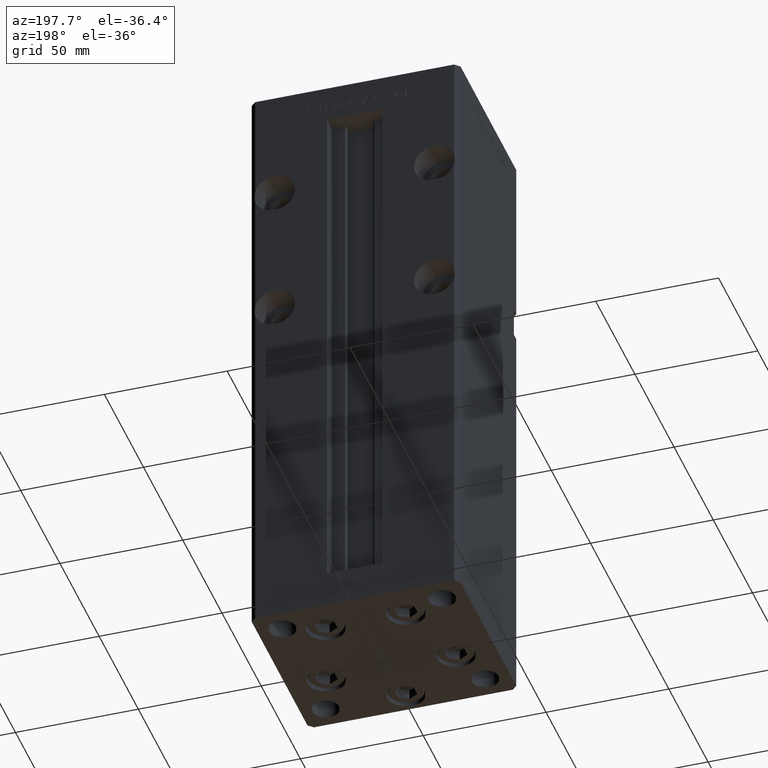
[diagram: clean part render]
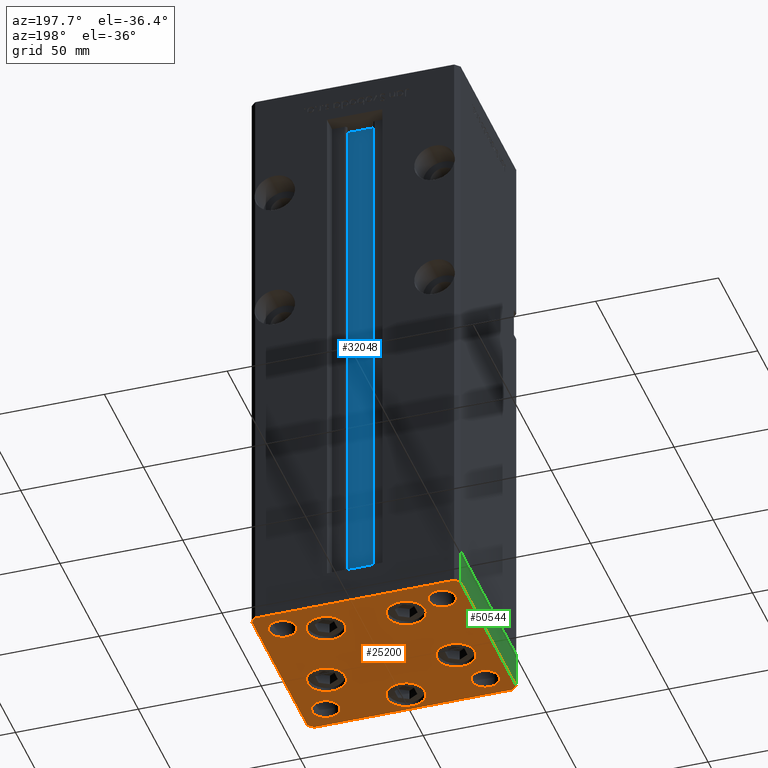
[diagram: same view with three faces highlighted in distinct colors, each labeled with its STEP entity id]
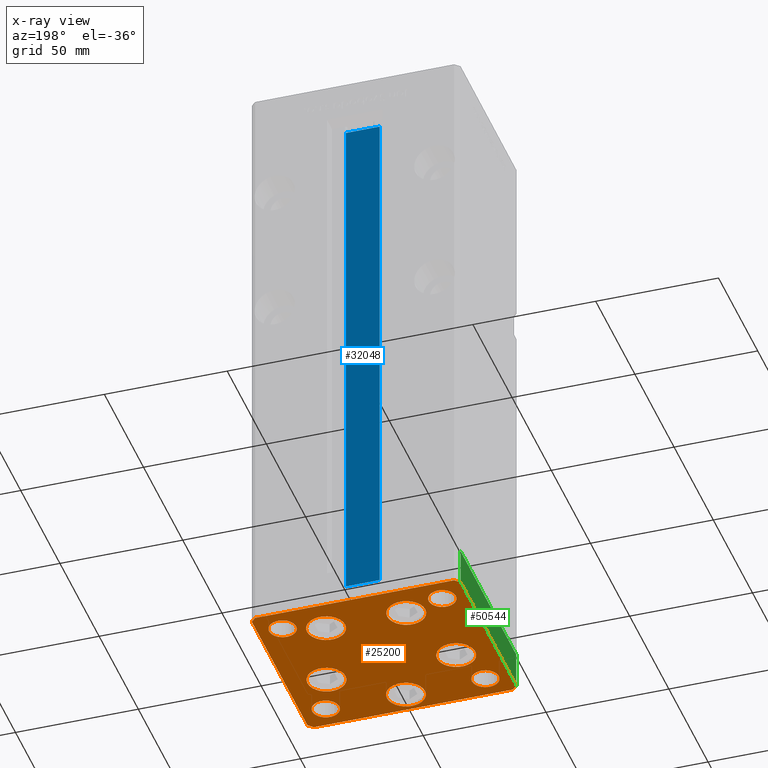
[diagram: x-ray of the same camera — body ghosted, the three highlighted faces saturated]
A machine part, auxiliary view with three faces highlighted in distinct colors.
The next image is the same camera in x-ray (body ghosted, the three faces saturated) — at least one of them is partly hidden behind the body in this view.
Their STEP definitions:

[orange] entity #25200 — the highlighted planar face has unit normal (0, 0, -1).
#27 = DIRECTION ( 'NONE',  ( 0.000000000000000000, -0.000000000000000000, -1.000000000000000000 ) ) ;
#595 = VERTEX_POINT ( 'NONE', #44178 ) ;
#1424 = VERTEX_POINT ( 'NONE', #3083 ) ;
#1489 = ORIENTED_EDGE ( 'NONE', *, *, #15292, .T. ) ;
#1565 = EDGE_LOOP ( 'NONE', ( #50676, #9344 ) ) ;
#1581 = DIRECTION ( 'NONE',  ( 0.7071067811865463515, -0.7071067811865487940, 0.000000000000000000 ) ) ;
#1622 = CARTESIAN_POINT ( 'NONE',  ( -32.50000000000000000, -27.49999999999999645, 0.000000000000000000 ) ) ;
#1764 = CARTESIAN_POINT ( 'NONE',  ( 8.572913342905422951, 22.75000000000000000, 0.000000000000000000 ) ) ;
#1968 = VECTOR ( 'NONE', #29401, 1000.000000000000114 ) ;
#2198 = DIRECTION ( 'NONE',  ( 1.000000000000000000, 0.000000000000000000, 0.000000000000000000 ) ) ;
#2305 = EDGE_CURVE ( 'NONE', #51693, #46533, #50969, .T. ) ;
#2357 = CARTESIAN_POINT ( 'NONE',  ( 42.50000000000000711, -35.50000000000000000, 0.000000000000000000 ) ) ;
#2459 = DIRECTION ( 'NONE',  ( 0.000000000000000000, -0.000000000000000000, -1.000000000000000000 ) ) ;
#2765 = FACE_BOUND ( 'NONE', #1565, .T. ) ;
#3083 = CARTESIAN_POINT ( 'NONE',  ( 24.07291334290542650, 22.75000000000000000, 0.000000000000000000 ) ) ;
#3184 = DIRECTION ( 'NONE',  ( 0.000000000000000000, -0.000000000000000000, -1.000000000000000000 ) ) ;
#3546 = ORIENTED_EDGE ( 'NONE', *, *, #7113, .F. ) ;
#3689 = EDGE_CURVE ( 'NONE', #10119, #29524, #33499, .T. ) ;
#3828 = VERTEX_POINT ( 'NONE', #3985 ) ;
#3985 = CARTESIAN_POINT ( 'NONE',  ( -38.00000000000000000, 27.50000000000000355, 0.000000000000000000 ) ) ;
#4078 = AXIS2_PLACEMENT_3D ( 'NONE', #51885, #2459, #2198 ) ;
#4608 = AXIS2_PLACEMENT_3D ( 'NONE', #52625, #11804, #44318 ) ;
#5154 = AXIS2_PLACEMENT_3D ( 'NONE', #6729, #19589, #43796 ) ;
#5332 = VECTOR ( 'NONE', #52474, 1000.000000000000000 ) ;
#5371 = CARTESIAN_POINT ( 'NONE',  ( 27.00000000000000355, -27.49999999999999645, 0.000000000000000000 ) ) ;
#6441 = VERTEX_POINT ( 'NONE', #5371 ) ;
#6544 = DIRECTION ( 'NONE',  ( 1.000000000000000000, 0.000000000000000000, 0.000000000000000000 ) ) ;
#6729 = CARTESIAN_POINT ( 'NONE',  ( -26.39865316429776954, -9.333333333333337478, 0.000000000000000000 ) ) ;
#6808 = DIRECTION ( 'NONE',  ( -0.000000000000000000, 0.000000000000000000, 1.000000000000000000 ) ) ;
#7010 = ORIENTED_EDGE ( 'NONE', *, *, #18995, .T. ) ;
#7113 = EDGE_CURVE ( 'NONE', #31175, #3828, #36892, .T. ) ;
#7271 = ORIENTED_EDGE ( 'NONE', *, *, #49273, .F. ) ;
#8013 = EDGE_LOOP ( 'NONE', ( #35431, #51350 ) ) ;
#8648 = DIRECTION ( 'NONE',  ( 0.000000000000000000, -0.000000000000000000, -1.000000000000000000 ) ) ;
#8663 = ORIENTED_EDGE ( 'NONE', *, *, #17700, .T. ) ;
#9298 = EDGE_CURVE ( 'NONE', #35750, #26385, #14732, .T. ) ;
#9344 = ORIENTED_EDGE ( 'NONE', *, *, #13995, .T. ) ;
#9469 = EDGE_CURVE ( 'NONE', #49606, #30882, #23628, .T. ) ;
#9786 = LINE ( 'NONE', #38244, #34239 ) ;
#9826 = CARTESIAN_POINT ( 'NONE',  ( 16.32291334290542295, 22.75000000000000000, 0.000000000000000000 ) ) ;
#10119 = VERTEX_POINT ( 'NONE', #45939 ) ;
#10178 = CARTESIAN_POINT ( 'NONE',  ( -42.50000000000000000, -35.50000000000000711, 0.000000000000000000 ) ) ;
#10279 = CIRCLE ( 'NONE', #11129, 7.750000000000003553 ) ;
#10666 = CIRCLE ( 'NONE', #32945, 5.499999999999998224 ) ;
#11038 = CARTESIAN_POINT ( 'NONE',  ( -40.49999999999999289, -37.50000000000002132, 0.000000000000000000 ) ) ;
#11089 = FACE_BOUND ( 'NONE', #25773, .T. ) ;
#11129 = AXIS2_PLACEMENT_3D ( 'NONE', #12813, #25436, #46367 ) ;
#11357 = FACE_BOUND ( 'NONE', #21410, .T. ) ;
#11388 = CARTESIAN_POINT ( 'NONE',  ( 40.49999999999991473, 37.50000000000000711, 0.000000000000000000 ) ) ;
#11657 = EDGE_LOOP ( 'NONE', ( #3546, #49091 ) ) ;
#11667 = DIRECTION ( 'NONE',  ( 9.773090005503140331E-17, -1.000000000000000000, 0.000000000000000000 ) ) ;
#11771 = DIRECTION ( 'NONE',  ( 1.000000000000000000, 0.000000000000000000, 0.000000000000000000 ) ) ;
#11804 = DIRECTION ( 'NONE',  ( -0.000000000000000000, 0.000000000000000000, 1.000000000000000000 ) ) ;
#11880 = LINE ( 'NONE', #52175, #22270 ) ;
#11987 = VERTEX_POINT ( 'NONE', #19865 ) ;
#12306 = DIRECTION ( 'NONE',  ( 0.000000000000000000, -0.000000000000000000, -1.000000000000000000 ) ) ;
#12640 = AXIS2_PLACEMENT_3D ( 'NONE', #49090, #12306, #11771 ) ;
#12813 = CARTESIAN_POINT ( 'NONE',  ( 16.32291334290542295, 22.75000000000000000, 0.000000000000000000 ) ) ;
#13249 = AXIS2_PLACEMENT_3D ( 'NONE', #43069, #6808, #6544 ) ;
#13722 = DIRECTION ( 'NONE',  ( 1.000000000000000000, 0.000000000000000000, 0.000000000000000000 ) ) ;
#13725 = AXIS2_PLACEMENT_3D ( 'NONE', #27244, #15145, #43630 ) ;
#13940 = CARTESIAN_POINT ( 'NONE',  ( 26.39865316429776954, -9.333333333333330373, 0.000000000000000000 ) ) ;
#13995 = EDGE_CURVE ( 'NONE', #30882, #49606, #47793, .T. ) ;
#14473 = EDGE_CURVE ( 'NONE', #43197, #28442, #40119, .T. ) ;
#14674 = DIRECTION ( 'NONE',  ( 1.000000000000000000, 0.000000000000000000, 0.000000000000000000 ) ) ;
#14732 = LINE ( 'NONE', #10178, #21938 ) ;
#15145 = DIRECTION ( 'NONE',  ( -0.000000000000000000, 0.000000000000000000, 1.000000000000000000 ) ) ;
#15292 = EDGE_CURVE ( 'NONE', #29524, #10119, #26382, .T. ) ;
#15377 = DIRECTION ( 'NONE',  ( 0.7071067811865474617, 0.7071067811865474617, 0.000000000000000000 ) ) ;
#15586 = CARTESIAN_POINT ( 'NONE',  ( 38.00000000000000000, -27.49999999999999645, 0.000000000000000000 ) ) ;
#15643 = DIRECTION ( 'NONE',  ( -0.000000000000000000, 0.000000000000000000, 1.000000000000000000 ) ) ;
#15676 = LINE ( 'NONE', #11388, #5332 ) ;
#15916 = DIRECTION ( 'NONE',  ( 0.000000000000000000, -0.000000000000000000, -1.000000000000000000 ) ) ;
#15918 = VERTEX_POINT ( 'NONE', #24896 ) ;
#15949 = LINE ( 'NONE', #19440, #47536 ) ;
#16305 = VECTOR ( 'NONE', #51506, 1000.000000000000000 ) ;
#16477 = DIRECTION ( 'NONE',  ( 1.000000000000000000, 1.713307136767217096E-16, 0.000000000000000000 ) ) ;
#16685 = EDGE_CURVE ( 'NONE', #28442, #43197, #37552, .T. ) ;
#16691 = DIRECTION ( 'NONE',  ( 1.000000000000000000, 0.000000000000000000, 0.000000000000000000 ) ) ;
#16781 = LINE ( 'NONE', #36658, #1968 ) ;
#17188 = DIRECTION ( 'NONE',  ( 0.000000000000000000, -0.000000000000000000, -1.000000000000000000 ) ) ;
#17700 = EDGE_CURVE ( 'NONE', #19817, #22047, #28149, .T. ) ;
#17824 = AXIS2_PLACEMENT_3D ( 'NONE', #1622, #34663, #42992 ) ;
#18131 = DIRECTION ( 'NONE',  ( 1.000000000000000000, 0.000000000000000000, 0.000000000000000000 ) ) ;
#18497 = DIRECTION ( 'NONE',  ( 1.000000000000000000, 0.000000000000000000, 0.000000000000000000 ) ) ;
#18694 = DIRECTION ( 'NONE',  ( 0.000000000000000000, -0.000000000000000000, -1.000000000000000000 ) ) ;
#18703 = EDGE_LOOP ( 'NONE', ( #1489, #42323 ) ) ;
#18995 = EDGE_CURVE ( 'NONE', #32114, #1424, #28177, .T. ) ;
#19231 = CARTESIAN_POINT ( 'NONE',  ( 32.50000000000000000, -27.49999999999999645, 0.000000000000000000 ) ) ;
#19313 = CARTESIAN_POINT ( 'NONE',  ( -8.572913342905431833, 22.74999999999999645, 0.000000000000000000 ) ) ;
#19440 = CARTESIAN_POINT ( 'NONE',  ( -40.49999999999999289, -37.50000000000002132, 0.000000000000000000 ) ) ;
#19589 = DIRECTION ( 'NONE',  ( 0.000000000000000000, -0.000000000000000000, -1.000000000000000000 ) ) ;
#19616 = CARTESIAN_POINT ( 'NONE',  ( -38.00000000000000000, -27.49999999999999645, 0.000000000000000000 ) ) ;
#19659 = FACE_BOUND ( 'NONE', #11657, .T. ) ;
#19817 = VERTEX_POINT ( 'NONE', #52556 ) ;
#19865 = CARTESIAN_POINT ( 'NONE',  ( 40.49999999999991473, 37.50000000000000711, 0.000000000000000000 ) ) ;
#19979 = CARTESIAN_POINT ( 'NONE',  ( 42.50000000000000711, -35.50000000000000000, 0.000000000000000000 ) ) ;
#20269 = ORIENTED_EDGE ( 'NONE', *, *, #9298, .T. ) ;
#20287 = CARTESIAN_POINT ( 'NONE',  ( -7.749999999999996447, -28.00000000000000000, 0.000000000000000000 ) ) ;
#20902 = AXIS2_PLACEMENT_3D ( 'NONE', #19231, #18694, #14674 ) ;
#21188 = VERTEX_POINT ( 'NONE', #28861 ) ;
#21354 = EDGE_CURVE ( 'NONE', #595, #51693, #11880, .T. ) ;
#21410 = EDGE_LOOP ( 'NONE', ( #27154, #49971 ) ) ;
#21616 = VERTEX_POINT ( 'NONE', #15586 ) ;
#21938 = VECTOR ( 'NONE', #1581, 1000.000000000000000 ) ;
#22047 = VERTEX_POINT ( 'NONE', #51361 ) ;
#22270 = VECTOR ( 'NONE', #15377, 1000.000000000000114 ) ;
#22937 = AXIS2_PLACEMENT_3D ( 'NONE', #40609, #8648, #16691 ) ;
#23479 = EDGE_CURVE ( 'NONE', #15918, #35140, #9786, .T. ) ;
#23628 = CIRCLE ( 'NONE', #43395, 7.750000000000000000 ) ;
#23699 = PLANE ( 'NONE',  #32562 ) ;
#24313 = ORIENTED_EDGE ( 'NONE', *, *, #37314, .T. ) ;
#24896 = CARTESIAN_POINT ( 'NONE',  ( -40.50000000000000711, 37.49999999999997868, 0.000000000000000000 ) ) ;
#25200 = ADVANCED_FACE ( 'NONE', ( #2765, #11089, #52967, #44392, #48153, #36314, #48940, #19659, #44659, #11357 ), #23699, .T. ) ;
#25436 = DIRECTION ( 'NONE',  ( 0.000000000000000000, -0.000000000000000000, -1.000000000000000000 ) ) ;
#25660 = EDGE_CURVE ( 'NONE', #1424, #32114, #10279, .T. ) ;
#25773 = EDGE_LOOP ( 'NONE', ( #7010, #38060 ) ) ;
#26308 = CARTESIAN_POINT ( 'NONE',  ( 18.64865316429776954, -9.333333333333330373, 0.000000000000000000 ) ) ;
#26382 = CIRCLE ( 'NONE', #22937, 7.750000000000000000 ) ;
#26385 = VERTEX_POINT ( 'NONE', #11038 ) ;
#26876 = AXIS2_PLACEMENT_3D ( 'NONE', #13940, #17188, #50472 ) ;
#27072 = EDGE_CURVE ( 'NONE', #22047, #19817, #28291, .T. ) ;
#27116 = CARTESIAN_POINT ( 'NONE',  ( 3.429011037612589276E-15, -28.00000000000000000, 0.000000000000000000 ) ) ;
#27154 = ORIENTED_EDGE ( 'NONE', *, *, #16685, .T. ) ;
#27244 = CARTESIAN_POINT ( 'NONE',  ( -32.50000000000000000, 27.50000000000000355, 0.000000000000000000 ) ) ;
#27333 = CARTESIAN_POINT ( 'NONE',  ( -27.00000000000000355, 27.50000000000000355, 0.000000000000000000 ) ) ;
#27451 = CARTESIAN_POINT ( 'NONE',  ( 27.00000000000000355, 27.49999999999999645, 0.000000000000000000 ) ) ;
#27693 = CIRCLE ( 'NONE', #30252, 5.499999999999998224 ) ;
#27747 = CIRCLE ( 'NONE', #44887, 7.750000000000000000 ) ;
#27760 = CIRCLE ( 'NONE', #4608, 5.499999999999998224 ) ;
#27889 = DIRECTION ( 'NONE',  ( 0.000000000000000000, -0.000000000000000000, -1.000000000000000000 ) ) ;
#28149 = CIRCLE ( 'NONE', #29878, 7.750000000000000000 ) ;
#28177 = CIRCLE ( 'NONE', #48780, 7.750000000000003553 ) ;
#28291 = CIRCLE ( 'NONE', #5154, 7.750000000000000000 ) ;
#28442 = VERTEX_POINT ( 'NONE', #30844 ) ;
#28861 = CARTESIAN_POINT ( 'NONE',  ( 38.00000000000000000, 27.49999999999999645, 0.000000000000000000 ) ) ;
#29401 = DIRECTION ( 'NONE',  ( -0.7071067811865474617, 0.7071067811865474617, 0.000000000000000000 ) ) ;
#29524 = VERTEX_POINT ( 'NONE', #20287 ) ;
#29878 = AXIS2_PLACEMENT_3D ( 'NONE', #48419, #15916, #32307 ) ;
#30252 = AXIS2_PLACEMENT_3D ( 'NONE', #36817, #27, #41127 ) ;
#30844 = CARTESIAN_POINT ( 'NONE',  ( -27.00000000000000355, -27.49999999999999645, 0.000000000000000000 ) ) ;
#30882 = VERTEX_POINT ( 'NONE', #19313 ) ;
#30920 = AXIS2_PLACEMENT_3D ( 'NONE', #27116, #3184, #18497 ) ;
#31175 = VERTEX_POINT ( 'NONE', #27333 ) ;
#31413 = CARTESIAN_POINT ( 'NONE',  ( -42.50000000000000000, -35.50000000000000711, 0.000000000000000000 ) ) ;
#32035 = CARTESIAN_POINT ( 'NONE',  ( 0.000000000000000000, 0.000000000000000000, 0.000000000000000000 ) ) ;
#32114 = VERTEX_POINT ( 'NONE', #1764 ) ;
#32189 = DIRECTION ( 'NONE',  ( 1.000000000000000000, 0.000000000000000000, 0.000000000000000000 ) ) ;
#32307 = DIRECTION ( 'NONE',  ( 1.000000000000000000, 0.000000000000000000, 0.000000000000000000 ) ) ;
#32562 = AXIS2_PLACEMENT_3D ( 'NONE', #32035, #15643, #35792 ) ;
#32861 = VERTEX_POINT ( 'NONE', #26308 ) ;
#32945 = AXIS2_PLACEMENT_3D ( 'NONE', #35384, #47737, #51755 ) ;
#33008 = CARTESIAN_POINT ( 'NONE',  ( -42.50000000000000711, 35.49999999999997158, 0.000000000000000000 ) ) ;
#33316 = EDGE_CURVE ( 'NONE', #11987, #15918, #15676, .T. ) ;
#33499 = CIRCLE ( 'NONE', #30920, 7.750000000000000000 ) ;
#33852 = EDGE_CURVE ( 'NONE', #21616, #6441, #27693, .T. ) ;
#34239 = VECTOR ( 'NONE', #51120, 1000.000000000000000 ) ;
#34663 = DIRECTION ( 'NONE',  ( 0.000000000000000000, -0.000000000000000000, -1.000000000000000000 ) ) ;
#35140 = VERTEX_POINT ( 'NONE', #33008 ) ;
#35384 = CARTESIAN_POINT ( 'NONE',  ( 32.50000000000000000, 27.49999999999999645, 0.000000000000000000 ) ) ;
#35431 = ORIENTED_EDGE ( 'NONE', *, *, #33852, .T. ) ;
#35677 = EDGE_CURVE ( 'NONE', #42587, #32861, #43172, .T. ) ;
#35684 = CARTESIAN_POINT ( 'NONE',  ( -16.32291334290543006, 22.74999999999999645, 0.000000000000000000 ) ) ;
#35723 = EDGE_LOOP ( 'NONE', ( #47732, #8663 ) ) ;
#35750 = VERTEX_POINT ( 'NONE', #31413 ) ;
#35792 = DIRECTION ( 'NONE',  ( 1.000000000000000000, 0.000000000000000000, 0.000000000000000000 ) ) ;
#36096 = EDGE_CURVE ( 'NONE', #6441, #21616, #52641, .T. ) ;
#36314 = FACE_BOUND ( 'NONE', #39558, .T. ) ;
#36401 = CIRCLE ( 'NONE', #13249, 5.499999999999998224 ) ;
#36658 = CARTESIAN_POINT ( 'NONE',  ( 42.49999999999992895, 35.50000000000000000, 0.000000000000000000 ) ) ;
#36817 = CARTESIAN_POINT ( 'NONE',  ( 32.50000000000000000, -27.49999999999999645, 0.000000000000000000 ) ) ;
#36892 = CIRCLE ( 'NONE', #13725, 5.499999999999998224 ) ;
#37314 = EDGE_CURVE ( 'NONE', #26385, #595, #15949, .T. ) ;
#37552 = CIRCLE ( 'NONE', #17824, 5.499999999999998224 ) ;
#37664 = EDGE_CURVE ( 'NONE', #21188, #47524, #10666, .T. ) ;
#38060 = ORIENTED_EDGE ( 'NONE', *, *, #25660, .T. ) ;
#38244 = CARTESIAN_POINT ( 'NONE',  ( -40.50000000000000711, 37.49999999999997868, 0.000000000000000000 ) ) ;
#38464 = ORIENTED_EDGE ( 'NONE', *, *, #21354, .T. ) ;
#39558 = EDGE_LOOP ( 'NONE', ( #51357, #7271 ) ) ;
#40119 = CIRCLE ( 'NONE', #4078, 5.499999999999998224 ) ;
#40301 = ORIENTED_EDGE ( 'NONE', *, *, #2305, .T. ) ;
#40436 = ORIENTED_EDGE ( 'NONE', *, *, #44599, .T. ) ;
#40609 = CARTESIAN_POINT ( 'NONE',  ( 3.429011037612589276E-15, -28.00000000000000000, 0.000000000000000000 ) ) ;
#40749 = EDGE_CURVE ( 'NONE', #3828, #31175, #27760, .T. ) ;
#40942 = CARTESIAN_POINT ( 'NONE',  ( -42.50000000000000711, 35.49999999999997158, 0.000000000000000000 ) ) ;
#41127 = DIRECTION ( 'NONE',  ( 1.000000000000000000, 0.000000000000000000, 0.000000000000000000 ) ) ;
#42323 = ORIENTED_EDGE ( 'NONE', *, *, #3689, .T. ) ;
#42417 = ORIENTED_EDGE ( 'NONE', *, *, #44969, .T. ) ;
#42587 = VERTEX_POINT ( 'NONE', #47970 ) ;
#42733 = CARTESIAN_POINT ( 'NONE',  ( 26.39865316429776954, -9.333333333333330373, 0.000000000000000000 ) ) ;
#42992 = DIRECTION ( 'NONE',  ( 1.000000000000000000, 0.000000000000000000, 0.000000000000000000 ) ) ;
#43069 = CARTESIAN_POINT ( 'NONE',  ( 32.50000000000000000, 27.49999999999999645, 0.000000000000000000 ) ) ;
#43172 = CIRCLE ( 'NONE', #26876, 7.750000000000000000 ) ;
#43197 = VERTEX_POINT ( 'NONE', #19616 ) ;
#43395 = AXIS2_PLACEMENT_3D ( 'NONE', #35684, #27889, #32189 ) ;
#43630 = DIRECTION ( 'NONE',  ( 1.000000000000000000, 0.000000000000000000, 0.000000000000000000 ) ) ;
#43796 = DIRECTION ( 'NONE',  ( 1.000000000000000000, 0.000000000000000000, 0.000000000000000000 ) ) ;
#44178 = CARTESIAN_POINT ( 'NONE',  ( 40.50000000000000000, -37.50000000000000711, 0.000000000000000000 ) ) ;
#44318 = DIRECTION ( 'NONE',  ( 1.000000000000000000, 0.000000000000000000, 0.000000000000000000 ) ) ;
#44392 = FACE_BOUND ( 'NONE', #18703, .T. ) ;
#44599 = EDGE_CURVE ( 'NONE', #32861, #42587, #27747, .T. ) ;
#44659 = FACE_OUTER_BOUND ( 'NONE', #45429, .T. ) ;
#44887 = AXIS2_PLACEMENT_3D ( 'NONE', #42733, #50516, #13722 ) ;
#44969 = EDGE_CURVE ( 'NONE', #46533, #11987, #16781, .T. ) ;
#45132 = CARTESIAN_POINT ( 'NONE',  ( -24.07291334290543006, 22.74999999999999645, 0.000000000000000000 ) ) ;
#45266 = ORIENTED_EDGE ( 'NONE', *, *, #23479, .T. ) ;
#45429 = EDGE_LOOP ( 'NONE', ( #20269, #24313, #38464, #40301, #42417, #49600, #45266, #51750 ) ) ;
#45575 = DIRECTION ( 'NONE',  ( 0.000000000000000000, -0.000000000000000000, -1.000000000000000000 ) ) ;
#45939 = CARTESIAN_POINT ( 'NONE',  ( 7.750000000000003553, -28.00000000000000000, 0.000000000000000000 ) ) ;
#46367 = DIRECTION ( 'NONE',  ( 1.000000000000000000, 0.000000000000000000, 0.000000000000000000 ) ) ;
#46533 = VERTEX_POINT ( 'NONE', #48642 ) ;
#46598 = VECTOR ( 'NONE', #11667, 1000.000000000000000 ) ;
#46802 = EDGE_LOOP ( 'NONE', ( #40436, #49101 ) ) ;
#47524 = VERTEX_POINT ( 'NONE', #27451 ) ;
#47536 = VECTOR ( 'NONE', #16477, 1000.000000000000000 ) ;
#47732 = ORIENTED_EDGE ( 'NONE', *, *, #27072, .T. ) ;
#47737 = DIRECTION ( 'NONE',  ( -0.000000000000000000, 0.000000000000000000, 1.000000000000000000 ) ) ;
#47793 = CIRCLE ( 'NONE', #12640, 7.750000000000000000 ) ;
#47970 = CARTESIAN_POINT ( 'NONE',  ( 34.14865316429776954, -9.333333333333328596, 0.000000000000000000 ) ) ;
#48153 = FACE_BOUND ( 'NONE', #35723, .T. ) ;
#48397 = EDGE_CURVE ( 'NONE', #35140, #35750, #52751, .T. ) ;
#48419 = CARTESIAN_POINT ( 'NONE',  ( -26.39865316429776954, -9.333333333333337478, 0.000000000000000000 ) ) ;
#48642 = CARTESIAN_POINT ( 'NONE',  ( 42.49999999999992895, 35.50000000000000000, 0.000000000000000000 ) ) ;
#48780 = AXIS2_PLACEMENT_3D ( 'NONE', #9826, #45575, #18131 ) ;
#48940 = FACE_BOUND ( 'NONE', #8013, .T. ) ;
#49090 = CARTESIAN_POINT ( 'NONE',  ( -16.32291334290543006, 22.74999999999999645, 0.000000000000000000 ) ) ;
#49091 = ORIENTED_EDGE ( 'NONE', *, *, #40749, .F. ) ;
#49101 = ORIENTED_EDGE ( 'NONE', *, *, #35677, .T. ) ;
#49273 = EDGE_CURVE ( 'NONE', #47524, #21188, #36401, .T. ) ;
#49600 = ORIENTED_EDGE ( 'NONE', *, *, #33316, .T. ) ;
#49606 = VERTEX_POINT ( 'NONE', #45132 ) ;
#49971 = ORIENTED_EDGE ( 'NONE', *, *, #14473, .T. ) ;
#50472 = DIRECTION ( 'NONE',  ( 1.000000000000000000, 0.000000000000000000, 0.000000000000000000 ) ) ;
#50516 = DIRECTION ( 'NONE',  ( 0.000000000000000000, -0.000000000000000000, -1.000000000000000000 ) ) ;
#50676 = ORIENTED_EDGE ( 'NONE', *, *, #9469, .T. ) ;
#50969 = LINE ( 'NONE', #2357, #16305 ) ;
#51120 = DIRECTION ( 'NONE',  ( -0.7071067811865463515, -0.7071067811865487940, 0.000000000000000000 ) ) ;
#51350 = ORIENTED_EDGE ( 'NONE', *, *, #36096, .T. ) ;
#51357 = ORIENTED_EDGE ( 'NONE', *, *, #37664, .F. ) ;
#51361 = CARTESIAN_POINT ( 'NONE',  ( -34.14865316429776954, -9.333333333333337478, 0.000000000000000000 ) ) ;
#51506 = DIRECTION ( 'NONE',  ( -1.172770800660376741E-15, 1.000000000000000000, 0.000000000000000000 ) ) ;
#51693 = VERTEX_POINT ( 'NONE', #19979 ) ;
#51750 = ORIENTED_EDGE ( 'NONE', *, *, #48397, .T. ) ;
#51755 = DIRECTION ( 'NONE',  ( 1.000000000000000000, 0.000000000000000000, 0.000000000000000000 ) ) ;
#51885 = CARTESIAN_POINT ( 'NONE',  ( -32.50000000000000000, -27.49999999999999645, 0.000000000000000000 ) ) ;
#52175 = CARTESIAN_POINT ( 'NONE',  ( 40.50000000000000000, -37.50000000000000711, 0.000000000000000000 ) ) ;
#52474 = DIRECTION ( 'NONE',  ( -1.000000000000000000, -3.426614273534436165E-16, 0.000000000000000000 ) ) ;
#52556 = CARTESIAN_POINT ( 'NONE',  ( -18.64865316429776954, -9.333333333333335702, 0.000000000000000000 ) ) ;
#52625 = CARTESIAN_POINT ( 'NONE',  ( -32.50000000000000000, 27.50000000000000355, 0.000000000000000000 ) ) ;
#52641 = CIRCLE ( 'NONE', #20902, 5.499999999999998224 ) ;
#52751 = LINE ( 'NONE', #40942, #46598 ) ;
#52967 = FACE_BOUND ( 'NONE', #46802, .T. ) ;

[blue] entity #32048 — the highlighted planar face has unit normal (0, -1, 0).
#719 = PLANE ( 'NONE',  #25057 ) ;
#1841 = ORIENTED_EDGE ( 'NONE', *, *, #47963, .F. ) ;
#3548 = CARTESIAN_POINT ( 'NONE',  ( 6.876153656360465938, 26.99999999999986855, 0.000000000000000000 ) ) ;
#5325 = CARTESIAN_POINT ( 'NONE',  ( 6.876153656360465938, 26.99999999999986855, 0.000000000000000000 ) ) ;
#5433 = VECTOR ( 'NONE', #42638, 1000.000000000000000 ) ;
#8050 = CARTESIAN_POINT ( 'NONE',  ( -6.876153656360465938, 26.99999999999986855, 0.000000000000000000 ) ) ;
#9343 = CARTESIAN_POINT ( 'NONE',  ( 6.876153656360465938, 26.99999999999986855, 0.000000000000000000 ) ) ;
#14078 = CARTESIAN_POINT ( 'NONE',  ( 0.000000000000000000, 26.99999999999986855, 218.5000000000000000 ) ) ;
#14476 = LINE ( 'NONE', #30870, #35507 ) ;
#16973 = CARTESIAN_POINT ( 'NONE',  ( -6.876153656360465938, 26.99999999999986855, 218.5000000000000000 ) ) ;
#18179 = LINE ( 'NONE', #5325, #5433 ) ;
#20464 = LINE ( 'NONE', #3548, #40786 ) ;
#21136 = FACE_OUTER_BOUND ( 'NONE', #40938, .T. ) ;
#21201 = ORIENTED_EDGE ( 'NONE', *, *, #41009, .F. ) ;
#25057 = AXIS2_PLACEMENT_3D ( 'NONE', #49870, #28121, #44520 ) ;
#26836 = DIRECTION ( 'NONE',  ( -0.000000000000000000, -0.000000000000000000, 1.000000000000000000 ) ) ;
#27249 = VERTEX_POINT ( 'NONE', #8050 ) ;
#28121 = DIRECTION ( 'NONE',  ( 0.000000000000000000, -1.000000000000000000, -0.000000000000000000 ) ) ;
#30468 = DIRECTION ( 'NONE',  ( -1.000000000000000000, 0.000000000000000000, 0.000000000000000000 ) ) ;
#30870 = CARTESIAN_POINT ( 'NONE',  ( -6.876153656360465938, 26.99999999999986855, 0.000000000000000000 ) ) ;
#32048 = ADVANCED_FACE ( 'NONE', ( #21136 ), #719, .F. ) ;
#35298 = LINE ( 'NONE', #14078, #40668 ) ;
#35507 = VECTOR ( 'NONE', #26836, 1000.000000000000000 ) ;
#36638 = EDGE_CURVE ( 'NONE', #27249, #45203, #14476, .T. ) ;
#36805 = VERTEX_POINT ( 'NONE', #9343 ) ;
#36842 = DIRECTION ( 'NONE',  ( 1.000000000000000000, -0.000000000000000000, -0.000000000000000000 ) ) ;
#40668 = VECTOR ( 'NONE', #30468, 1000.000000000000000 ) ;
#40786 = VECTOR ( 'NONE', #36842, 1000.000000000000000 ) ;
#40938 = EDGE_LOOP ( 'NONE', ( #1841, #21201, #41751, #43925 ) ) ;
#41009 = EDGE_CURVE ( 'NONE', #27249, #36805, #20464, .T. ) ;
#41751 = ORIENTED_EDGE ( 'NONE', *, *, #36638, .T. ) ;
#42638 = DIRECTION ( 'NONE',  ( -0.000000000000000000, -0.000000000000000000, 1.000000000000000000 ) ) ;
#43459 = CARTESIAN_POINT ( 'NONE',  ( 6.876153656360465938, 26.99999999999986855, 218.5000000000000000 ) ) ;
#43925 = ORIENTED_EDGE ( 'NONE', *, *, #51284, .F. ) ;
#44520 = DIRECTION ( 'NONE',  ( 0.000000000000000000, 0.000000000000000000, -1.000000000000000000 ) ) ;
#45203 = VERTEX_POINT ( 'NONE', #16973 ) ;
#47963 = EDGE_CURVE ( 'NONE', #36805, #48079, #18179, .T. ) ;
#48079 = VERTEX_POINT ( 'NONE', #43459 ) ;
#49870 = CARTESIAN_POINT ( 'NONE',  ( 6.876153656360465938, 26.99999999999986855, 0.000000000000000000 ) ) ;
#51284 = EDGE_CURVE ( 'NONE', #48079, #45203, #35298, .T. ) ;

[green] entity #50544 — the highlighted planar face has unit normal (-1, -0, 0).
#333 = CARTESIAN_POINT ( 'NONE',  ( 42.49999999999992895, 35.50000000000000000, -15.00000000000000000 ) ) ;
#471 = ORIENTED_EDGE ( 'NONE', *, *, #2305, .F. ) ;
#2305 = EDGE_CURVE ( 'NONE', #51693, #46533, #50969, .T. ) ;
#2357 = CARTESIAN_POINT ( 'NONE',  ( 42.50000000000000711, -35.50000000000000000, 0.000000000000000000 ) ) ;
#4872 = EDGE_LOOP ( 'NONE', ( #471, #24788, #48341, #26059 ) ) ;
#5367 = PLANE ( 'NONE',  #41470 ) ;
#8873 = CARTESIAN_POINT ( 'NONE',  ( 42.50000000000000711, -35.50000000000000000, -15.00000000000000000 ) ) ;
#8983 = VERTEX_POINT ( 'NONE', #45210 ) ;
#12299 = VECTOR ( 'NONE', #24378, 1000.000000000000000 ) ;
#13715 = EDGE_CURVE ( 'NONE', #19376, #8983, #44347, .T. ) ;
#13751 = VECTOR ( 'NONE', #16443, 1000.000000000000000 ) ;
#16305 = VECTOR ( 'NONE', #51506, 1000.000000000000000 ) ;
#16443 = DIRECTION ( 'NONE',  ( 0.000000000000000000, 0.000000000000000000, 1.000000000000000000 ) ) ;
#19376 = VERTEX_POINT ( 'NONE', #26060 ) ;
#19883 = CARTESIAN_POINT ( 'NONE',  ( 42.50000000000000711, -35.50000000000000000, -15.00000000000000000 ) ) ;
#19979 = CARTESIAN_POINT ( 'NONE',  ( 42.50000000000000711, -35.50000000000000000, 0.000000000000000000 ) ) ;
#24378 = DIRECTION ( 'NONE',  ( 0.000000000000000000, 0.000000000000000000, 1.000000000000000000 ) ) ;
#24788 = ORIENTED_EDGE ( 'NONE', *, *, #44773, .F. ) ;
#25254 = DIRECTION ( 'NONE',  ( 1.000000000000000000, 1.172770800660376741E-15, -0.000000000000000000 ) ) ;
#25307 = LINE ( 'NONE', #333, #13751 ) ;
#25441 = CARTESIAN_POINT ( 'NONE',  ( 42.50000000000000711, -35.50000000000000000, -15.00000000000000000 ) ) ;
#26059 = ORIENTED_EDGE ( 'NONE', *, *, #27902, .T. ) ;
#26060 = CARTESIAN_POINT ( 'NONE',  ( 42.50000000000000711, -35.50000000000000000, -15.00000000000000000 ) ) ;
#27902 = EDGE_CURVE ( 'NONE', #8983, #46533, #25307, .T. ) ;
#29764 = VECTOR ( 'NONE', #45144, 1000.000000000000000 ) ;
#34092 = FACE_OUTER_BOUND ( 'NONE', #4872, .T. ) ;
#41296 = LINE ( 'NONE', #25441, #12299 ) ;
#41470 = AXIS2_PLACEMENT_3D ( 'NONE', #8873, #25254, #49685 ) ;
#44347 = LINE ( 'NONE', #19883, #29764 ) ;
#44773 = EDGE_CURVE ( 'NONE', #19376, #51693, #41296, .T. ) ;
#45144 = DIRECTION ( 'NONE',  ( -1.172770800660376741E-15, 1.000000000000000000, 0.000000000000000000 ) ) ;
#45210 = CARTESIAN_POINT ( 'NONE',  ( 42.49999999999992895, 35.50000000000000000, -15.00000000000000000 ) ) ;
#46533 = VERTEX_POINT ( 'NONE', #48642 ) ;
#48341 = ORIENTED_EDGE ( 'NONE', *, *, #13715, .T. ) ;
#48642 = CARTESIAN_POINT ( 'NONE',  ( 42.49999999999992895, 35.50000000000000000, 0.000000000000000000 ) ) ;
#49685 = DIRECTION ( 'NONE',  ( -1.172770800660376741E-15, 1.000000000000000000, 0.000000000000000000 ) ) ;
#50544 = ADVANCED_FACE ( 'NONE', ( #34092 ), #5367, .T. ) ;
#50969 = LINE ( 'NONE', #2357, #16305 ) ;
#51506 = DIRECTION ( 'NONE',  ( -1.172770800660376741E-15, 1.000000000000000000, 0.000000000000000000 ) ) ;
#51693 = VERTEX_POINT ( 'NONE', #19979 ) ;